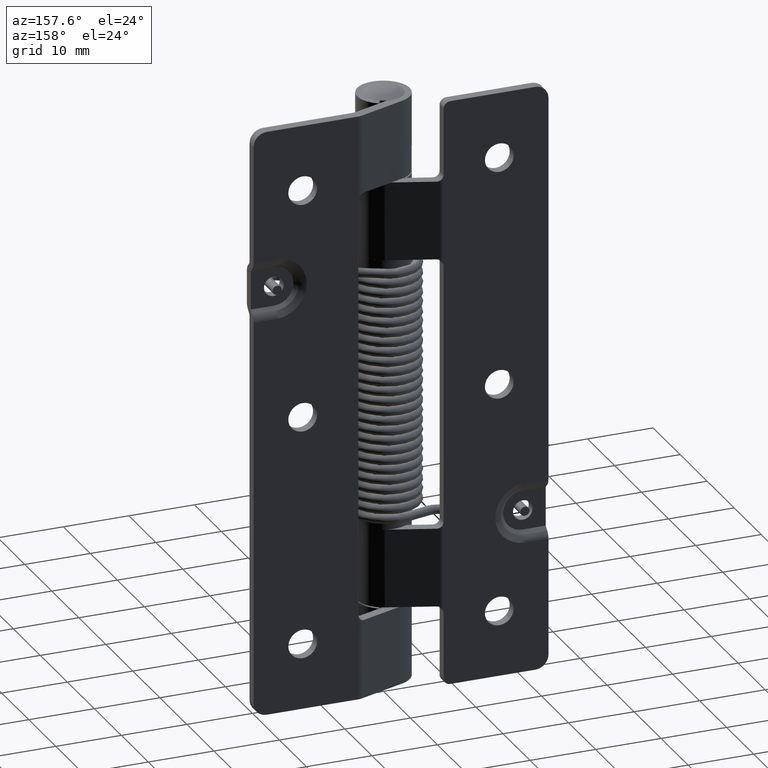
[diagram: clean part render]
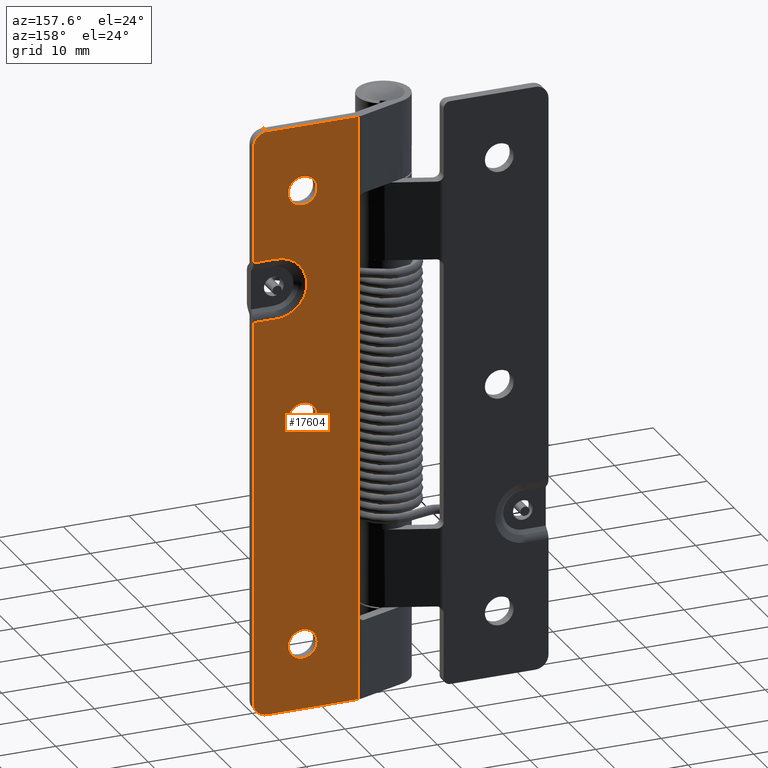
[diagram: same view with one face highlighted and labeled with its STEP entity id]
A machine part, auxiliary view. The second image highlights one B-rep face of the part: STEP entity #17604.
In plain terms, the highlighted face is a freeform B-spline surface patch.
Its self-contained STEP definition (entity closure, byte-faithful):
#15540=CARTESIAN_POINT('',(17.199999999973599,6.500000000000000,80.000001341051615));
#15541=VERTEX_POINT('',#15540);
#15542=CARTESIAN_POINT('',(16.622010297483818,6.500000000013812,81.486298780297972));
#15543=VERTEX_POINT('',#15542);
#15544=CARTESIAN_POINT('',(17.199999999973599,6.500000000000000,80.000001341051615));
#15545=CARTESIAN_POINT('',(17.200190035274741,6.500000000002371,80.255013546959049));
#15546=CARTESIAN_POINT('',(17.104294463212280,6.500000000007422,80.798815112381931));
#15547=CARTESIAN_POINT('',(16.817518060435649,6.500000000011843,81.273428899918798));
#15548=CARTESIAN_POINT('',(16.622010297483818,6.500000000013812,81.486298780297972));
#15549=B_SPLINE_CURVE_WITH_KNOTS('',3,(#15544,#15545,#15546,#15547,#15548),.UNSPECIFIED.,.F.,.U.,(4,1,4),(0.000000041434815,0.764972970101525,1.631918293526177),.UNSPECIFIED.);
#15550=EDGE_CURVE('',#15541,#15543,#15549,.T.);
#15552=CARTESIAN_POINT('',(14.999999999973999,6.500000000000000,77.800000000000011));
#15553=VERTEX_POINT('',#15552);
#15554=CARTESIAN_POINT('',(14.999999999973999,6.500000000000000,77.800000000000011));
#15555=CARTESIAN_POINT('',(15.179985539123029,6.499999999999998,77.799965085139391));
#15556=CARTESIAN_POINT('',(15.557948324828830,6.499999999999988,77.846615676653911));
#15557=CARTESIAN_POINT('',(16.080780053589940,6.500000000000035,78.055652233702816));
#15558=CARTESIAN_POINT('',(16.503153230100580,6.499999999999942,78.368989875909776));
#15559=CARTESIAN_POINT('',(16.833912439395348,6.500000000000063,78.752441481715579));
#15560=CARTESIAN_POINT('',(17.116105316047449,6.499999999999929,79.280183109578530));
#15561=CARTESIAN_POINT('',(17.200219209719211,6.500000000000053,79.729990352932759));
#15562=CARTESIAN_POINT('',(17.199999999973599,6.500000000000000,80.000001341051615));
#15563=B_SPLINE_CURVE_WITH_KNOTS('',3,(#15554,#15555,#15556,#15557,#15558,#15559,#15560,#15561,#15562),.UNSPECIFIED.,.F.,.U.,(4,1,1,1,1,1,4),(0.000000119327993,0.539963458536855,1.133959541452496,1.673936861802142,2.105887216345005,2.645878031165534,3.455839393398180),.UNSPECIFIED.);
#15564=EDGE_CURVE('',#15553,#15541,#15563,.T.);
#15566=CARTESIAN_POINT('',(13.377989702464181,6.500000000013812,78.513701219702028));
#15567=VERTEX_POINT('',#15566);
#15568=CARTESIAN_POINT('',(13.377989702464181,6.500000000013812,78.513701219702028));
#15569=CARTESIAN_POINT('',(13.519124686470439,6.500000000012618,78.359556341339925));
#15570=CARTESIAN_POINT('',(13.801241099236560,6.500000000010185,78.128538480705586));
#15571=CARTESIAN_POINT('',(14.354147157538060,6.500000000005525,77.867942801135996));
#15572=CARTESIAN_POINT('',(14.752986407497261,6.500000000002081,77.799819486449252));
#15573=CARTESIAN_POINT('',(14.999999999973999,6.500000000000000,77.800000000000011));
#15574=B_SPLINE_CURVE_WITH_KNOTS('',3,(#15568,#15569,#15570,#15571,#15572,#15573),.UNSPECIFIED.,.F.,.U.,(4,1,1,4),(0.000000031293992,0.626979836315573,1.082944214713749,1.823920066868281),.UNSPECIFIED.);
#15575=EDGE_CURVE('',#15567,#15553,#15574,.T.);
#15645=CARTESIAN_POINT('',(14.999999999973999,6.500000000000000,82.199999999999989));
#15646=VERTEX_POINT('',#15645);
#15647=CARTESIAN_POINT('',(16.622010297483818,6.500000000013812,81.486298780297972));
#15648=CARTESIAN_POINT('',(16.480876201914072,6.500000000012618,81.640443656332152));
#15649=CARTESIAN_POINT('',(16.198758575238251,6.500000000010198,81.871461977855816));
#15650=CARTESIAN_POINT('',(15.645852886568109,6.500000000005514,82.132056569781724));
#15651=CARTESIAN_POINT('',(15.247013297706101,6.500000000002085,82.200181367576320));
#15652=CARTESIAN_POINT('',(14.999999999973999,6.500000000000000,82.199999999999989));
#15653=B_SPLINE_CURVE_WITH_KNOTS('',3,(#15647,#15648,#15649,#15650,#15651,#15652),.UNSPECIFIED.,.F.,.U.,(4,1,1,4),(0.000000031290161,0.626979836313226,1.082944214712374,1.823920066868360),.UNSPECIFIED.);
#15654=EDGE_CURVE('',#15543,#15646,#15653,.T.);
#15690=CARTESIAN_POINT('',(12.799999999974411,6.500000000000000,79.999998658948400));
#15691=VERTEX_POINT('',#15690);
#15692=CARTESIAN_POINT('',(12.799999999974411,6.500000000000000,79.999998658948400));
#15693=CARTESIAN_POINT('',(12.799942910465480,6.500000000001732,79.813006071756774));
#15694=CARTESIAN_POINT('',(12.841440337023350,6.500000000004744,79.490063741784923));
#15695=CARTESIAN_POINT('',(13.027572553325671,6.500000000009511,78.976440417246081));
#15696=CARTESIAN_POINT('',(13.228599778150770,6.500000000012304,78.676567399011574));
#15697=CARTESIAN_POINT('',(13.377989702464181,6.500000000013812,78.513701219702028));
#15698=B_SPLINE_CURVE_WITH_KNOTS('',3,(#15692,#15693,#15694,#15695,#15696,#15697),.UNSPECIFIED.,.F.,.U.,(4,1,1,4),(0.000000041432550,0.560973724287095,0.968938777603547,1.631918293526208),.UNSPECIFIED.);
#15699=EDGE_CURVE('',#15691,#15567,#15698,.T.);
#15701=CARTESIAN_POINT('',(14.999999999973999,6.500000000000000,82.199999999999989));
#15702=CARTESIAN_POINT('',(14.693926656943759,6.499999999999987,82.200394015459722));
#15703=CARTESIAN_POINT('',(14.244361377455821,6.500000000000009,82.104532366630792));
#15704=CARTESIAN_POINT('',(13.630544294482080,6.500000000000005,81.756871071630485));
#15705=CARTESIAN_POINT('',(13.243107846278580,6.499999999999978,81.369470278012415));
#15706=CARTESIAN_POINT('',(12.895495808583931,6.500000000000064,80.755626440450698));
#15707=CARTESIAN_POINT('',(12.799582115240050,6.499999999999984,80.306075794750654));
#15708=CARTESIAN_POINT('',(12.799999999974411,6.500000000000000,79.999998658948400));
#15709=B_SPLINE_CURVE_WITH_KNOTS('',3,(#15701,#15702,#15703,#15704,#15705,#15706,#15707,#15708),.UNSPECIFIED.,.F.,.U.,(4,1,1,1,1,4),(0.000000119335249,0.917958583115679,1.349952778544253,2.105887216347841,2.537881118141821,3.455839393398145),.UNSPECIFIED.);
#15710=EDGE_CURVE('',#15646,#15691,#15709,.T.);
#15733=CARTESIAN_POINT('',(17.199999999973489,6.500000000000000,45.000001341051622));
#15734=VERTEX_POINT('',#15733);
#15735=CARTESIAN_POINT('',(16.622010297483719,6.500000000013812,46.486298780297993));
#15736=VERTEX_POINT('',#15735);
#15737=CARTESIAN_POINT('',(17.199999999973489,6.500000000000000,45.000001341051622));
#15738=CARTESIAN_POINT('',(17.200084147811300,6.500000000002066,45.220996282168372));
#15739=CARTESIAN_POINT('',(17.140604075252270,6.500000000005630,45.611919342962928));
#15740=CARTESIAN_POINT('',(16.918631234933429,6.500000000010417,46.112541910241987));
#15741=CARTESIAN_POINT('',(16.725383287219060,6.500000000012709,46.373515092737009));
#15742=CARTESIAN_POINT('',(16.622010297483719,6.500000000013812,46.486298780297993));
#15743=B_SPLINE_CURVE_WITH_KNOTS('',3,(#15737,#15738,#15739,#15740,#15741,#15742),.UNSPECIFIED.,.F.,.U.,(4,1,1,4),(0.000000041433343,0.662979557290882,1.172938694329001,1.631918293526197),.UNSPECIFIED.);
#15744=EDGE_CURVE('',#15734,#15736,#15743,.T.);
#15746=CARTESIAN_POINT('',(14.999999999973900,6.500000000000000,42.799999999999997));
#15747=VERTEX_POINT('',#15746);
#15748=CARTESIAN_POINT('',(14.999999999973900,6.500000000000000,42.799999999999997));
#15749=CARTESIAN_POINT('',(15.179987336120400,6.499999999999997,42.799958588697152));
#15750=CARTESIAN_POINT('',(15.521943500642941,6.500000000000008,42.842199984441557));
#15751=CARTESIAN_POINT('',(15.980257091287760,6.499999999999992,43.012553075666801));
#15752=CARTESIAN_POINT('',(16.362236642576541,6.500000000000021,43.254457082716982));
#15753=CARTESIAN_POINT('',(16.676597951461019,6.499999999999941,43.553754587314998));
#15754=CARTESIAN_POINT('',(16.926520244953540,6.500000000000069,43.908622193135308));
#15755=CARTESIAN_POINT('',(17.139119748470929,6.499999999999916,44.388114920669523));
#15756=CARTESIAN_POINT('',(17.200117204414980,6.500000000000032,44.766004217626552));
#15757=CARTESIAN_POINT('',(17.199999999973489,6.500000000000000,45.000001341051622));
#15758=B_SPLINE_CURVE_WITH_KNOTS('',3,(#15748,#15749,#15750,#15751,#15752,#15753,#15754,#15755,#15756,#15757),.UNSPECIFIED.,.F.,.U.,(4,1,1,1,1,1,1,4),(0.000000119335023,0.539963458542641,1.025960383099257,1.457961161232567,1.889881951043805,2.321879742460212,2.753879863960840,3.455839393398163),.UNSPECIFIED.);
#15759=EDGE_CURVE('',#15747,#15734,#15758,.T.);
#15761=CARTESIAN_POINT('',(13.377989702464079,6.500000000013812,43.513701219702007));
#15762=VERTEX_POINT('',#15761);
#15763=CARTESIAN_POINT('',(13.377989702464079,6.500000000013812,43.513701219702007));
#15764=CARTESIAN_POINT('',(13.519124057487391,6.500000000012607,43.359558655314487));
#15765=CARTESIAN_POINT('',(13.801242089324431,6.500000000010211,43.128537877161712));
#15766=CARTESIAN_POINT('',(14.354143790091721,6.500000000005496,42.867926789463240));
#15767=CARTESIAN_POINT('',(14.752990607807140,6.500000000002118,42.799839951328252));
#15768=CARTESIAN_POINT('',(14.999999999973900,6.500000000000000,42.799999999999997));
#15769=B_SPLINE_CURVE_WITH_KNOTS('',3,(#15763,#15764,#15765,#15766,#15767,#15768),.UNSPECIFIED.,.F.,.U.,(4,1,1,4),(0.000000031292668,0.626979836314844,1.082944214713390,1.823920066868298),.UNSPECIFIED.);
#15770=EDGE_CURVE('',#15762,#15747,#15769,.T.);
#15841=CARTESIAN_POINT('',(14.999999999973900,6.500000000000000,47.200000000000003));
#15842=VERTEX_POINT('',#15841);
#15843=CARTESIAN_POINT('',(16.622010297483719,6.500000000013812,46.486298780297993));
#15844=CARTESIAN_POINT('',(16.455263092683570,6.500000000012397,46.668537597826287));
#15845=CARTESIAN_POINT('',(16.135586239794371,6.500000000009659,46.916572118996392));
#15846=CARTESIAN_POINT('',(15.569915096374370,6.500000000004881,47.148153488796837));
#15847=CARTESIAN_POINT('',(15.208997609787181,6.500000000001742,47.200089928707577));
#15848=CARTESIAN_POINT('',(14.999999999973900,6.500000000000000,47.200000000000003));
#15849=B_SPLINE_CURVE_WITH_KNOTS('',3,(#15843,#15844,#15845,#15846,#15847,#15848),.UNSPECIFIED.,.F.,.U.,(4,1,1,4),(0.000000031290981,0.740975883451499,1.196940261882382,1.823920066868339),.UNSPECIFIED.);
#15850=EDGE_CURVE('',#15736,#15842,#15849,.T.);
#15887=CARTESIAN_POINT('',(12.799999999974309,6.500000000000000,44.999998658948392));
#15888=VERTEX_POINT('',#15887);
#15889=CARTESIAN_POINT('',(12.799999999974309,6.500000000000000,44.999998658948392));
#15890=CARTESIAN_POINT('',(12.799700259135630,6.500000000002685,44.710977621313710));
#15891=CARTESIAN_POINT('',(12.908845154683130,6.500000000007751,44.167297164942063));
#15892=CARTESIAN_POINT('',(13.205573262635230,6.500000000012057,43.701588989759770));
#15893=CARTESIAN_POINT('',(13.377989702464079,6.500000000013812,43.513701219702007));
#15894=B_SPLINE_CURVE_WITH_KNOTS('',3,(#15889,#15890,#15891,#15892,#15893),.UNSPECIFIED.,.F.,.U.,(4,1,4),(0.000000041432831,0.866945364852734,1.631918293526221),.UNSPECIFIED.);
#15895=EDGE_CURVE('',#15888,#15762,#15894,.T.);
#15897=CARTESIAN_POINT('',(14.999999999973900,6.500000000000000,47.200000000000003));
#15898=CARTESIAN_POINT('',(14.820015766399811,6.499999999999995,47.200033186917132));
#15899=CARTESIAN_POINT('',(14.442043139577450,6.500000000000014,47.153393480572248));
#15900=CARTESIAN_POINT('',(13.952964385927761,6.499999999999989,46.957812544267277));
#15901=CARTESIAN_POINT('',(13.553758852314029,6.500000000000026,46.676588967598661));
#15902=CARTESIAN_POINT('',(13.204530212643050,6.499999999999939,46.309865191939267));
#15903=CARTESIAN_POINT('',(12.890582383818090,6.500000000000038,45.755848021562720));
#15904=CARTESIAN_POINT('',(12.799781352141750,6.500000000000002,45.269995541966587));
#15905=CARTESIAN_POINT('',(12.799999999974309,6.500000000000000,44.999998658948392));
#15906=B_SPLINE_CURVE_WITH_KNOTS('',3,(#15897,#15898,#15899,#15900,#15901,#15902,#15903,#15904,#15905),.UNSPECIFIED.,.F.,.U.,(4,1,1,1,1,1,4),(0.000000119335848,0.539963458543118,1.133959541456937,1.565957318068738,1.997878386318268,2.645878031166014,3.455839393398160),.UNSPECIFIED.);
#15907=EDGE_CURVE('',#15842,#15888,#15906,.T.);
#15930=CARTESIAN_POINT('',(17.199999999973389,6.500000000000000,10.000001341051620));
#15931=VERTEX_POINT('',#15930);
#15932=CARTESIAN_POINT('',(16.622010297483619,6.500000000013812,11.486298780297981));
#15933=VERTEX_POINT('',#15932);
#15934=CARTESIAN_POINT('',(17.199999999973389,6.500000000000000,10.000001341051620));
#15935=CARTESIAN_POINT('',(17.200047236887791,6.500000000001733,10.186992104702631));
#15936=CARTESIAN_POINT('',(17.158569669289591,6.500000000004740,10.509937953849770));
#15937=CARTESIAN_POINT('',(16.972421669521800,6.500000000009514,11.023559045786010));
#15938=CARTESIAN_POINT('',(16.771401219920829,6.500000000012301,11.323431836464311));
#15939=CARTESIAN_POINT('',(16.622010297483619,6.500000000013812,11.486298780297981));
#15940=B_SPLINE_CURVE_WITH_KNOTS('',3,(#15934,#15935,#15936,#15937,#15938,#15939),.UNSPECIFIED.,.F.,.U.,(4,1,1,4),(0.000000041432539,0.560973724286946,0.968938777603486,1.631918293526197),.UNSPECIFIED.);
#15941=EDGE_CURVE('',#15931,#15933,#15940,.T.);
#15943=CARTESIAN_POINT('',(14.999999999973801,6.500000000000000,7.800000000000000));
#15944=VERTEX_POINT('',#15943);
#15945=CARTESIAN_POINT('',(14.999999999973801,6.500000000000000,7.800000000000000));
#15946=CARTESIAN_POINT('',(15.306057654628111,6.499999999999996,7.799624842812494));
#15947=CARTESIAN_POINT('',(15.755678558541369,6.500000000000006,7.895420546252342));
#15948=CARTESIAN_POINT('',(16.306428222380760,6.499999999999994,8.207546115230581));
#15949=CARTESIAN_POINT('',(16.655780712402279,6.499999999999998,8.524161706272555));
#15950=CARTESIAN_POINT('',(16.905683086501099,6.500000000000001,8.879053138075404));
#15951=CARTESIAN_POINT('',(17.129520771966789,6.499999999999999,9.352185055274862));
#15952=CARTESIAN_POINT('',(17.200256650783629,6.500000000000005,9.729973065128458));
#15953=CARTESIAN_POINT('',(17.199999999973389,6.500000000000000,10.000001341051620));
#15954=B_SPLINE_CURVE_WITH_KNOTS('',3,(#15945,#15946,#15947,#15948,#15949,#15950,#15951,#15952,#15953),.UNSPECIFIED.,.F.,.U.,(4,1,1,1,1,1,4),(0.000000119331586,0.917958583112498,1.349952778541361,1.889881951042328,2.321879742459249,2.645878031165439,3.455839393398195),.UNSPECIFIED.);
#15955=EDGE_CURVE('',#15944,#15931,#15954,.T.);
#15957=CARTESIAN_POINT('',(13.377989702463980,6.500000000013812,8.513701219702018));
#15958=VERTEX_POINT('',#15957);
#15959=CARTESIAN_POINT('',(13.377989702463980,6.500000000013812,8.513701219702018));
#15960=CARTESIAN_POINT('',(13.519123384837870,6.500000000012610,8.359556990774099));
#15961=CARTESIAN_POINT('',(13.801243887750850,6.500000000010214,8.128543556474794));
#15962=CARTESIAN_POINT('',(14.354140927596680,6.500000000005501,7.867915232086920));
#15963=CARTESIAN_POINT('',(14.752993804411171,6.500000000002107,7.799852596964170));
#15964=CARTESIAN_POINT('',(14.999999999973801,6.500000000000000,7.800000000000000));
#15965=B_SPLINE_CURVE_WITH_KNOTS('',3,(#15959,#15960,#15961,#15962,#15963,#15964),.UNSPECIFIED.,.F.,.U.,(4,1,1,4),(0.000000031292393,0.626979836314604,1.082944214713167,1.823920066868320),.UNSPECIFIED.);
#15966=EDGE_CURVE('',#15958,#15944,#15965,.T.);
#16037=CARTESIAN_POINT('',(14.999999999973801,6.500000000000000,12.199999999999999));
#16038=VERTEX_POINT('',#16037);
#16039=CARTESIAN_POINT('',(16.622010297483619,6.500000000013812,11.486298780297981));
#16040=CARTESIAN_POINT('',(16.480876806612631,6.500000000012607,11.640441503943279));
#16041=CARTESIAN_POINT('',(16.198756751789340,6.500000000010215,11.871462139824340));
#16042=CARTESIAN_POINT('',(15.645857025040110,6.500000000005496,12.132073228215869));
#16043=CARTESIAN_POINT('',(15.247009232115840,6.500000000002109,12.200160078082790));
#16044=CARTESIAN_POINT('',(14.999999999973801,6.500000000000000,12.199999999999999));
#16045=B_SPLINE_CURVE_WITH_KNOTS('',3,(#16039,#16040,#16041,#16042,#16043,#16044),.UNSPECIFIED.,.F.,.U.,(4,1,1,4),(0.000000031292154,0.626979836314489,1.082944214713125,1.823920066868324),.UNSPECIFIED.);
#16046=EDGE_CURVE('',#15933,#16038,#16045,.T.);
#16083=CARTESIAN_POINT('',(12.799999999974210,6.500000000000000,9.999998658948391));
#16084=VERTEX_POINT('',#16083);
#16085=CARTESIAN_POINT('',(12.799999999974210,6.500000000000000,9.999998658948391));
#16086=CARTESIAN_POINT('',(12.799942774915950,6.500000000001735,9.813005868258495));
#16087=CARTESIAN_POINT('',(12.841444078512170,6.500000000004743,9.490065702922811));
#16088=CARTESIAN_POINT('',(13.027558672328940,6.500000000009489,8.976431902426070));
#16089=CARTESIAN_POINT('',(13.228614752019251,6.500000000012322,8.676576955358046));
#16090=CARTESIAN_POINT('',(13.377989702463980,6.500000000013812,8.513701219702018));
#16091=B_SPLINE_CURVE_WITH_KNOTS('',3,(#16085,#16086,#16087,#16088,#16089,#16090),.UNSPECIFIED.,.F.,.U.,(4,1,1,4),(0.000000041432282,0.560973724286850,0.968938777603464,1.631918293526204),.UNSPECIFIED.);
#16092=EDGE_CURVE('',#16084,#15958,#16091,.T.);
#16094=CARTESIAN_POINT('',(14.999999999973801,6.500000000000000,12.199999999999999));
#16095=CARTESIAN_POINT('',(14.784011859413869,6.499999999999990,12.200081045714620));
#16096=CARTESIAN_POINT('',(14.370087026543130,6.500000000000001,12.138556263726890));
#16097=CARTESIAN_POINT('',(13.858161250971181,6.499999999999996,11.904085109975240));
#16098=CARTESIAN_POINT('',(13.473233956317801,6.500000000000012,11.603609873885190));
#16099=CARTESIAN_POINT('',(13.189735254487760,6.499999999999993,11.274937846186811));
#16100=CARTESIAN_POINT('',(12.895429161917161,6.499999999999998,10.755687192509111));
#16101=CARTESIAN_POINT('',(12.799603854726829,6.499999999999999,10.306055926177260));
#16102=CARTESIAN_POINT('',(12.799999999974210,6.500000000000000,9.999998658948391));
#16103=B_SPLINE_CURVE_WITH_KNOTS('',3,(#16094,#16095,#16096,#16097,#16098,#16099,#16100,#16101,#16102),.UNSPECIFIED.,.F.,.U.,(4,1,1,1,1,1,4),(0.000000119333862,0.647959058537870,1.241946409599997,1.673936861804362,2.105887216346152,2.537881118140517,3.455839393398187),.UNSPECIFIED.);
#16104=EDGE_CURVE('',#16038,#16084,#16103,.T.);
#16935=CARTESIAN_POINT('',(6.499999999965280,6.500000000000000,77.0));
#16936=VERTEX_POINT('',#16935);
#16993=CARTESIAN_POINT('',(6.499999999964700,6.500000000000000,13.0));
#16994=VERTEX_POINT('',#16993);
#17042=CARTESIAN_POINT('',(6.499999999965280,6.500000000000000,90.0));
#17043=VERTEX_POINT('',#17042);
#17051=CARTESIAN_POINT('',(6.499999999965280,6.500000000000000,77.0));
#17052=CARTESIAN_POINT('',(6.499999999965280,6.500000000000000,90.0));
#17053=QUASI_UNIFORM_CURVE('',1,(#17051,#17052),.UNSPECIFIED.,.F.,.U.);
#17054=EDGE_CURVE('',#16936,#17043,#17053,.T.);
#17077=CARTESIAN_POINT('',(6.499999999965280,6.500000000000000,0.0));
#17078=VERTEX_POINT('',#17077);
#17079=CARTESIAN_POINT('',(6.499999999965280,6.500000000000000,0.0));
#17080=CARTESIAN_POINT('',(6.499999999964700,6.500000000000000,13.0));
#17081=QUASI_UNIFORM_CURVE('',1,(#17079,#17080),.UNSPECIFIED.,.F.,.U.);
#17082=EDGE_CURVE('',#17078,#16994,#17081,.T.);
#17211=CARTESIAN_POINT('',(6.499999999964700,6.500000000000000,13.0));
#17212=CARTESIAN_POINT('',(6.499999999965280,6.500000000000000,77.0));
#17213=QUASI_UNIFORM_CURVE('',1,(#17211,#17212),.UNSPECIFIED.,.F.,.U.);
#17214=EDGE_CURVE('',#16994,#16936,#17213,.T.);
#17231=CARTESIAN_POINT('',(20.500000000000501,6.500000000000000,0.0));
#17232=VERTEX_POINT('',#17231);
#17233=CARTESIAN_POINT('',(20.500000000000501,6.500000000000000,0.0));
#17234=CARTESIAN_POINT('',(6.499999999965280,6.500000000000000,0.0));
#17235=QUASI_UNIFORM_CURVE('',1,(#17233,#17234),.UNSPECIFIED.,.F.,.U.);
#17236=EDGE_CURVE('',#17232,#17078,#17235,.T.);
#17318=CARTESIAN_POINT('',(20.500000000000501,6.500000000000000,90.0));
#17319=VERTEX_POINT('',#17318);
#17325=CARTESIAN_POINT('',(20.500000000000501,6.500000000000000,90.0));
#17326=CARTESIAN_POINT('',(6.499999999965280,6.500000000000000,90.0));
#17327=QUASI_UNIFORM_CURVE('',1,(#17325,#17326),.UNSPECIFIED.,.F.,.U.);
#17328=EDGE_CURVE('',#17319,#17043,#17327,.T.);
#17485=CARTESIAN_POINT('',(5.700800030974015,6.500000000000000,94.495499825562533));
#17486=CARTESIAN_POINT('',(5.700800030974015,6.500000000000000,-4.495502239550651));
#17487=CARTESIAN_POINT('',(23.299200398144620,6.500000000000000,94.495499825562533));
#17488=CARTESIAN_POINT('',(23.299200398144620,6.500000000000000,-4.495502239550651));
#17489=B_SPLINE_SURFACE_WITH_KNOTS('',1,1,((#17485,#17487),(#17486,#17488)),.UNSPECIFIED.,.F.,.F.,.U.,(2,2),(2,2),(0.0,98.991002065113179),(0.0,17.598400367170608),.UNSPECIFIED.);
#17490=CARTESIAN_POINT('',(18.999999999982201,6.500000000000000,70.121320343559290));
#17491=VERTEX_POINT('',#17490);
#17492=CARTESIAN_POINT('',(14.378679656422680,6.499999999999999,65.499999062345964));
#17493=VERTEX_POINT('',#17492);
#17494=CARTESIAN_POINT('',(18.999999999982201,6.500000000000000,70.121320343559290));
#17495=CARTESIAN_POINT('',(18.659728575801950,6.499999999999995,70.121377791378464));
#17496=CARTESIAN_POINT('',(17.979208887162471,6.500000000000014,70.045819150234408));
#17497=CARTESIAN_POINT('',(16.936010954222571,6.499999999999981,69.687069538006270));
#17498=CARTESIAN_POINT('',(16.072545064718678,6.500000000000034,69.125292496181785));
#17499=CARTESIAN_POINT('',(15.370287380060610,6.499999999999974,68.405460364973550));
#17500=CARTESIAN_POINT('',(14.930878073388049,6.500000000000104,67.739001861118098));
#17501=CARTESIAN_POINT('',(14.506775549962260,6.499999999999894,66.766361309929408));
#17502=CARTESIAN_POINT('',(14.378275261859470,6.500000000000127,66.029382089652671));
#17503=CARTESIAN_POINT('',(14.378679656422680,6.499999999999999,65.499999062345964));
#17504=B_SPLINE_CURVE_WITH_KNOTS('',3,(#17494,#17495,#17496,#17497,#17498,#17499,#17500,#17501,#17502,#17503),.UNSPECIFIED.,.F.,.U.,(4,1,1,1,1,1,1,4),(0.000000116740717,1.020808845703719,2.041654248029484,3.289327930119339,4.083278909336450,5.047409482402586,5.671250115386913,7.259199097198479),.UNSPECIFIED.);
#17505=EDGE_CURVE('',#17491,#17493,#17504,.T.);
#17506=ORIENTED_EDGE('',*,*,#17505,.T.);
#17507=CARTESIAN_POINT('',(18.999999999984048,6.500000000000000,60.878679656439999));
#17508=VERTEX_POINT('',#17507);
#17509=CARTESIAN_POINT('',(14.378679656422680,6.499999999999999,65.499999062345964));
#17510=CARTESIAN_POINT('',(14.378595032290100,6.500000000000011,65.140815525676217));
#17511=CARTESIAN_POINT('',(14.449582702404509,6.499999999999988,64.535926295539454));
#17512=CARTESIAN_POINT('',(14.729812947432899,6.500000000000010,63.669837949829372));
#17513=CARTESIAN_POINT('',(15.159576564153090,6.499999999999989,62.865700021211047));
#17514=CARTESIAN_POINT('',(15.863087819985671,6.500000000000018,62.039823834454417));
#17515=CARTESIAN_POINT('',(16.720911004039209,6.499999999999987,61.435715500496812));
#17516=CARTESIAN_POINT('',(17.790272064000490,6.499999999999965,60.992819463608377));
#17517=CARTESIAN_POINT('',(18.527367377424870,6.500000000000044,60.878433357064353));
#17518=CARTESIAN_POINT('',(18.999999999984048,6.500000000000000,60.878679656439999));
#17519=B_SPLINE_CURVE_WITH_KNOTS('',3,(#17509,#17510,#17511,#17512,#17513,#17514,#17515,#17516,#17517,#17518),.UNSPECIFIED.,.F.,.U.,(4,1,1,1,1,1,1,4),(0.000000117064021,1.077533997628710,1.814800716303651,2.722220432543854,3.799731424740854,5.047408747121883,5.841388392854568,7.259198040238753),.UNSPECIFIED.);
#17520=EDGE_CURVE('',#17493,#17508,#17519,.T.);
#17521=ORIENTED_EDGE('',*,*,#17520,.T.);
#17522=CARTESIAN_POINT('',(22.500000000000501,6.500000000000000,60.878679656441498));
#17523=VERTEX_POINT('',#17522);
#17524=CARTESIAN_POINT('',(18.999999999984048,6.500000000000000,60.878679656439999));
#17525=CARTESIAN_POINT('',(22.500000000000501,6.500000000000000,60.878679656441498));
#17526=QUASI_UNIFORM_CURVE('',1,(#17524,#17525),.UNSPECIFIED.,.F.,.U.);
#17527=EDGE_CURVE('',#17508,#17523,#17526,.T.);
#17528=ORIENTED_EDGE('',*,*,#17527,.T.);
#17529=CARTESIAN_POINT('',(22.500000000000501,6.500000000000000,2.0));
#17530=VERTEX_POINT('',#17529);
#17531=CARTESIAN_POINT('',(22.500000000000501,6.500000000000000,60.878679656441498));
#17532=CARTESIAN_POINT('',(22.500000000000501,6.500000000000000,2.0));
#17533=QUASI_UNIFORM_CURVE('',1,(#17531,#17532),.UNSPECIFIED.,.F.,.U.);
#17534=EDGE_CURVE('',#17523,#17530,#17533,.T.);
#17535=ORIENTED_EDGE('',*,*,#17534,.T.);
#17536=CARTESIAN_POINT('',(22.500000000000501,6.500000000000000,2.0));
#17537=CARTESIAN_POINT('',(22.500079836010421,6.499999999999998,1.803640340609225));
#17538=CARTESIAN_POINT('',(22.453836926685408,6.500000000000010,1.492807287656841));
#17539=CARTESIAN_POINT('',(22.289144379934129,6.499999999999989,1.081100309974920));
#17540=CARTESIAN_POINT('',(22.034175261718872,6.500000000000006,0.678154601078346));
#17541=CARTESIAN_POINT('',(21.640476215080561,6.499999999999998,0.321360444434691));
#17542=CARTESIAN_POINT('',(21.088988762151271,6.499999999999997,0.060628369383273));
#17543=CARTESIAN_POINT('',(20.712721087413961,6.500000000000004,-0.000112097864495));
#17544=CARTESIAN_POINT('',(20.500000000000501,6.500000000000000,0.0));
#17545=B_SPLINE_CURVE_WITH_KNOTS('',3,(#17536,#17537,#17538,#17539,#17540,#17541,#17542,#17543,#17544),.UNSPECIFIED.,.F.,.U.,(4,1,1,1,1,1,4),(0.000000139752776,0.589061923434578,0.932686175684032,1.325416835409054,2.012616167025012,2.503519633501915,3.141671488676716),.UNSPECIFIED.);
#17546=EDGE_CURVE('',#17530,#17232,#17545,.T.);
#17547=ORIENTED_EDGE('',*,*,#17546,.T.);
#17548=ORIENTED_EDGE('',*,*,#17236,.T.);
#17549=ORIENTED_EDGE('',*,*,#17082,.T.);
#17550=ORIENTED_EDGE('',*,*,#17214,.T.);
#17551=ORIENTED_EDGE('',*,*,#17054,.T.);
#17552=ORIENTED_EDGE('',*,*,#17328,.F.);
#17553=CARTESIAN_POINT('',(22.500000000000501,6.500000000000000,88.0));
#17554=VERTEX_POINT('',#17553);
#17555=CARTESIAN_POINT('',(20.500000000000501,6.500000000000000,90.0));
#17556=CARTESIAN_POINT('',(20.729092641199909,6.500000000000004,90.000156671791729));
#17557=CARTESIAN_POINT('',(21.170787956790381,6.500000000000002,89.923277370769483));
#17558=CARTESIAN_POINT('',(21.736998325822899,6.499999999999992,89.611661196061476));
#17559=CARTESIAN_POINT('',(22.181876100564910,6.500000000000020,89.144456809688364));
#17560=CARTESIAN_POINT('',(22.444530957234640,6.500000000000004,88.589066723794360));
#17561=CARTESIAN_POINT('',(22.500025052104991,6.499999999999994,88.179977073135120));
#17562=CARTESIAN_POINT('',(22.500000000000501,6.500000000000000,88.0));
#17563=B_SPLINE_CURVE_WITH_KNOTS('',3,(#17555,#17556,#17557,#17558,#17559,#17560,#17561,#17562),.UNSPECIFIED.,.F.,.U.,(4,1,1,1,1,4),(0.000000139743253,0.687236579738622,1.325416835404897,1.914453318769249,2.601708324520669,3.141671488676720),.UNSPECIFIED.);
#17564=EDGE_CURVE('',#17319,#17554,#17563,.T.);
#17565=ORIENTED_EDGE('',*,*,#17564,.T.);
#17566=CARTESIAN_POINT('',(22.500000000000501,6.500000000000000,70.121320343560697));
#17567=VERTEX_POINT('',#17566);
#17568=CARTESIAN_POINT('',(22.500000000000501,6.500000000000000,88.0));
#17569=CARTESIAN_POINT('',(22.500000000000501,6.500000000000000,70.121320343560697));
#17570=QUASI_UNIFORM_CURVE('',1,(#17568,#17569),.UNSPECIFIED.,.F.,.U.);
#17571=EDGE_CURVE('',#17554,#17567,#17570,.T.);
#17572=ORIENTED_EDGE('',*,*,#17571,.T.);
#17573=CARTESIAN_POINT('',(22.500000000000501,6.500000000000000,70.121320343560697));
#17574=CARTESIAN_POINT('',(18.999999999982201,6.500000000000000,70.121320343559290));
#17575=QUASI_UNIFORM_CURVE('',1,(#17573,#17574),.UNSPECIFIED.,.F.,.U.);
#17576=EDGE_CURVE('',#17567,#17491,#17575,.T.);
#17577=ORIENTED_EDGE('',*,*,#17576,.T.);
#17578=EDGE_LOOP('',(#17506,#17521,#17528,#17535,#17547,#17548,#17549,#17550,#17551,#17552,#17565,#17572,#17577));
#17579=FACE_OUTER_BOUND('',#17578,.T.);
#17580=ORIENTED_EDGE('',*,*,#15907,.T.);
#17581=ORIENTED_EDGE('',*,*,#15895,.T.);
#17582=ORIENTED_EDGE('',*,*,#15770,.T.);
#17583=ORIENTED_EDGE('',*,*,#15759,.T.);
#17584=ORIENTED_EDGE('',*,*,#15744,.T.);
#17585=ORIENTED_EDGE('',*,*,#15850,.T.);
#17586=EDGE_LOOP('',(#17580,#17581,#17582,#17583,#17584,#17585));
#17587=FACE_BOUND('',#17586,.T.);
#17588=ORIENTED_EDGE('',*,*,#16104,.T.);
#17589=ORIENTED_EDGE('',*,*,#16092,.T.);
#17590=ORIENTED_EDGE('',*,*,#15966,.T.);
#17591=ORIENTED_EDGE('',*,*,#15955,.T.);
#17592=ORIENTED_EDGE('',*,*,#15941,.T.);
#17593=ORIENTED_EDGE('',*,*,#16046,.T.);
#17594=EDGE_LOOP('',(#17588,#17589,#17590,#17591,#17592,#17593));
#17595=FACE_BOUND('',#17594,.T.);
#17596=ORIENTED_EDGE('',*,*,#15710,.T.);
#17597=ORIENTED_EDGE('',*,*,#15699,.T.);
#17598=ORIENTED_EDGE('',*,*,#15575,.T.);
#17599=ORIENTED_EDGE('',*,*,#15564,.T.);
#17600=ORIENTED_EDGE('',*,*,#15550,.T.);
#17601=ORIENTED_EDGE('',*,*,#15654,.T.);
#17602=EDGE_LOOP('',(#17596,#17597,#17598,#17599,#17600,#17601));
#17603=FACE_BOUND('',#17602,.T.);
#17604=ADVANCED_FACE('',(#17579,#17587,#17595,#17603),#17489,.F.);